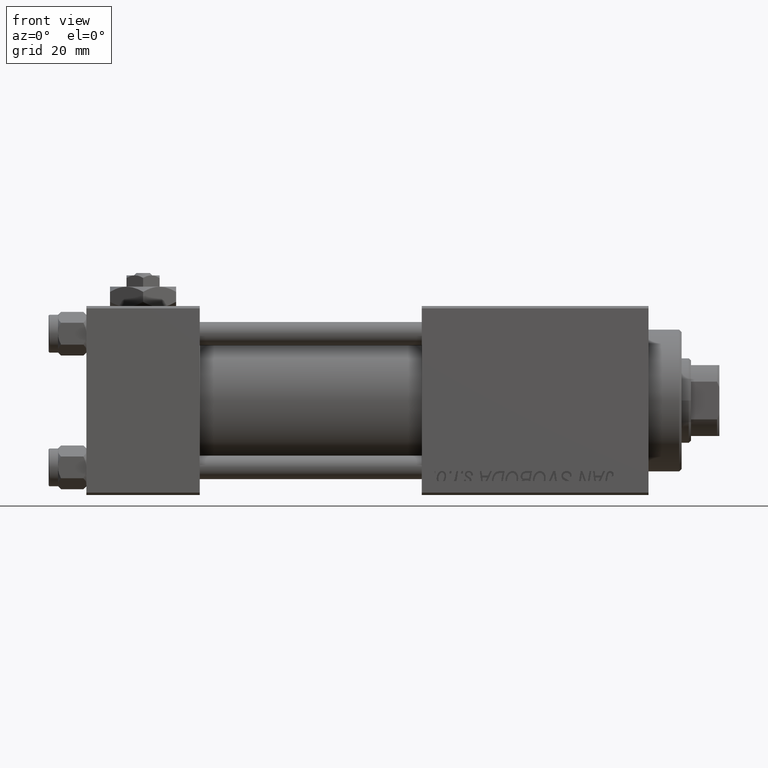
[diagram: clean part render]
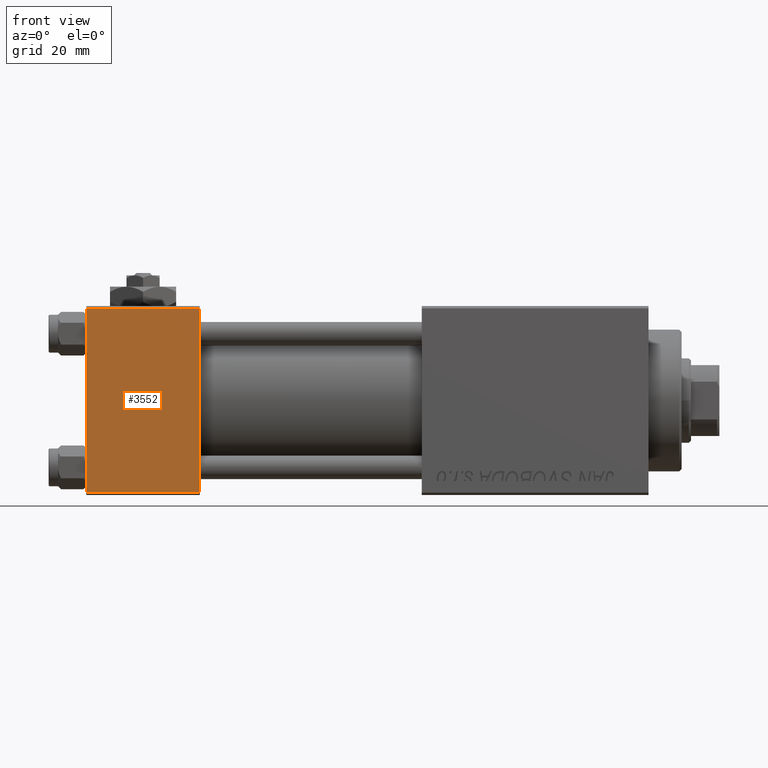
[diagram: same view with one face highlighted and labeled with its STEP entity id]
A machine part, front view. The second image highlights one B-rep face of the part: STEP entity #3552.
In plain terms, the highlighted planar face has unit normal (0, 1, 0).
Its self-contained STEP definition (entity closure, byte-faithful):
#34 = LINE ( 'NONE', #50561, #6078 ) ;
#3552 = ADVANCED_FACE ( 'NONE', ( #30413 ), #38547, .F. ) ;
#5507 = VECTOR ( 'NONE', #33573, 1000.000000000000000 ) ;
#5825 = ORIENTED_EDGE ( 'NONE', *, *, #41383, .F. ) ;
#5873 = ORIENTED_EDGE ( 'NONE', *, *, #35236, .T. ) ;
#6078 = VECTOR ( 'NONE', #20032, 1000.000000000000000 ) ;
#10576 = CARTESIAN_POINT ( 'NONE',  ( 24.00000000000000000, -20.00000000000000355, 19.49999999999998224 ) ) ;
#16371 = LINE ( 'NONE', #23234, #42891 ) ;
#16525 = CARTESIAN_POINT ( 'NONE',  ( 24.00000000000000000, -20.00000000000000000, -19.49999999999999645 ) ) ;
#16776 = LINE ( 'NONE', #16525, #5507 ) ;
#17235 = CARTESIAN_POINT ( 'NONE',  ( 0.000000000000000000, -20.00000000000000000, -19.49999999999999645 ) ) ;
#19120 = CARTESIAN_POINT ( 'NONE',  ( 24.00000000000000000, -20.00000000000000355, 19.99999999999998934 ) ) ;
#19366 = DIRECTION ( 'NONE',  ( -0.000000000000000000, 1.000000000000000000, 8.673617379884036705E-17 ) ) ;
#20032 = DIRECTION ( 'NONE',  ( 0.000000000000000000, 8.673617379884036705E-17, -1.000000000000000000 ) ) ;
#20240 = VERTEX_POINT ( 'NONE', #10576 ) ;
#21779 = EDGE_CURVE ( 'NONE', #22067, #47420, #16776, .T. ) ;
#22067 = VERTEX_POINT ( 'NONE', #17235 ) ;
#23108 = ORIENTED_EDGE ( 'NONE', *, *, #35612, .T. ) ;
#23234 = CARTESIAN_POINT ( 'NONE',  ( 0.000000000000000000, -20.00000000000000355, 19.99999999999998934 ) ) ;
#24279 = AXIS2_PLACEMENT_3D ( 'NONE', #19120, #19366, #34614 ) ;
#25628 = EDGE_LOOP ( 'NONE', ( #5873, #30846, #5825, #23108 ) ) ;
#26165 = VECTOR ( 'NONE', #46725, 1000.000000000000000 ) ;
#26533 = LINE ( 'NONE', #30729, #26165 ) ;
#27685 = DIRECTION ( 'NONE',  ( 0.000000000000000000, 8.673617379884036705E-17, -1.000000000000000000 ) ) ;
#30413 = FACE_OUTER_BOUND ( 'NONE', #25628, .T. ) ;
#30729 = CARTESIAN_POINT ( 'NONE',  ( 24.00000000000000000, -20.00000000000000355, 19.49999999999998224 ) ) ;
#30846 = ORIENTED_EDGE ( 'NONE', *, *, #21779, .T. ) ;
#33573 = DIRECTION ( 'NONE',  ( 1.000000000000000000, 0.000000000000000000, 0.000000000000000000 ) ) ;
#34130 = CARTESIAN_POINT ( 'NONE',  ( 24.00000000000000000, -20.00000000000000000, -19.49999999999999645 ) ) ;
#34614 = DIRECTION ( 'NONE',  ( 0.000000000000000000, -8.673617379884036705E-17, 1.000000000000000000 ) ) ;
#35236 = EDGE_CURVE ( 'NONE', #50668, #22067, #16371, .T. ) ;
#35612 = EDGE_CURVE ( 'NONE', #20240, #50668, #26533, .T. ) ;
#38547 = PLANE ( 'NONE',  #24279 ) ;
#39822 = CARTESIAN_POINT ( 'NONE',  ( 0.000000000000000000, -20.00000000000000355, 19.49999999999998224 ) ) ;
#41383 = EDGE_CURVE ( 'NONE', #20240, #47420, #34, .T. ) ;
#42891 = VECTOR ( 'NONE', #27685, 1000.000000000000000 ) ;
#46725 = DIRECTION ( 'NONE',  ( -1.000000000000000000, 0.000000000000000000, 0.000000000000000000 ) ) ;
#47420 = VERTEX_POINT ( 'NONE', #34130 ) ;
#50561 = CARTESIAN_POINT ( 'NONE',  ( 24.00000000000000000, -20.00000000000000355, 19.99999999999998934 ) ) ;
#50668 = VERTEX_POINT ( 'NONE', #39822 ) ;